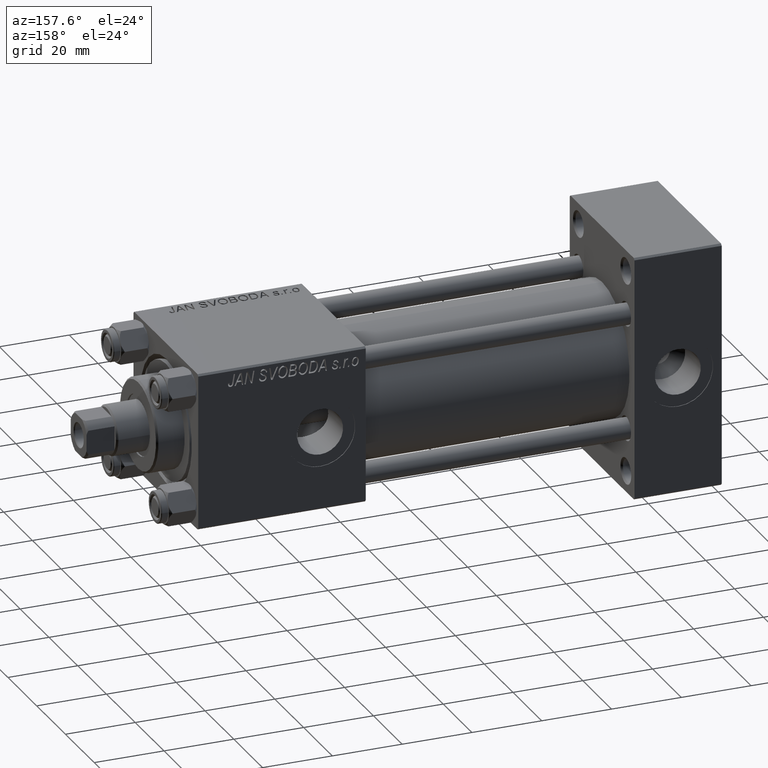
[diagram: clean part render]
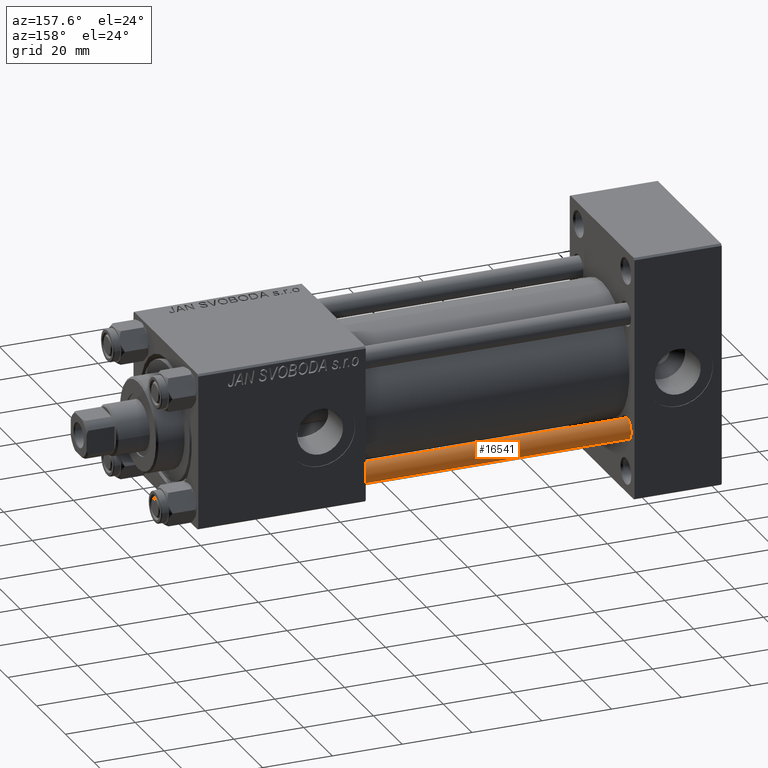
[diagram: same view with one face highlighted and labeled with its STEP entity id]
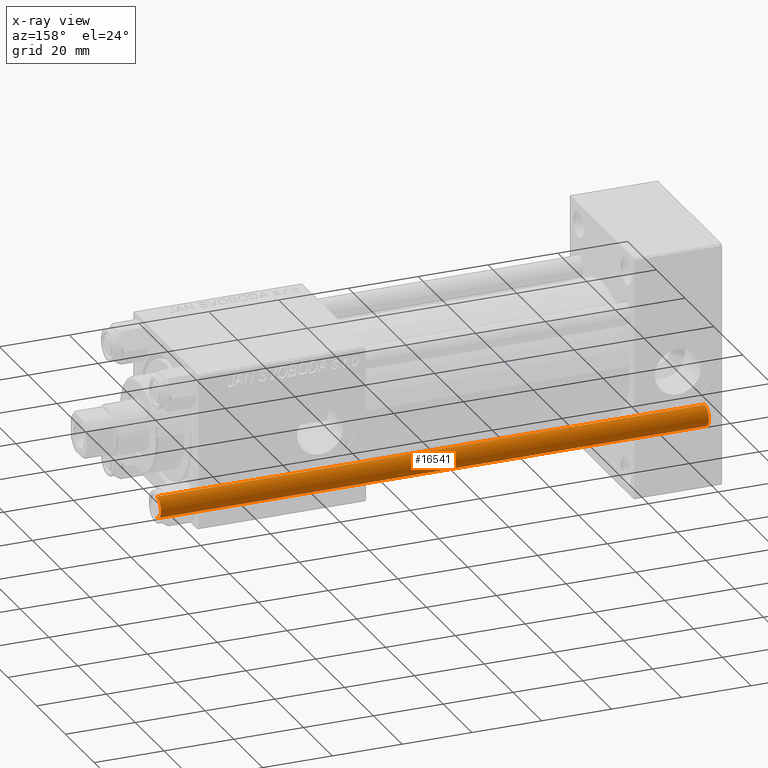
[diagram: x-ray of the same camera — body ghosted, the highlighted face saturated]
A machine part, auxiliary view. The second image highlights one B-rep face of the part: STEP entity #16541.
The next image is the same camera in x-ray: the body ghosted, the highlighted face saturated — about 0% of this face is hidden behind the body in this view.
In plain terms, the highlighted cylindrical surface (edge-blend (fillet) strip) has radius 3 mm, axis along (-1, 0, 0).
Its self-contained STEP definition (entity closure, byte-faithful):
#389 = VECTOR ( 'NONE', #27752, 1000.000000000000000 ) ;
#736 = CARTESIAN_POINT ( 'NONE',  ( 0.000000000000000000, 0.000000000000000000, 0.5000000000000281997 ) ) ;
#2215 = VERTEX_POINT ( 'NONE', #46989 ) ;
#9588 = VECTOR ( 'NONE', #9843, 1000.000000000000000 ) ;
#9843 = DIRECTION ( 'NONE',  ( -0.000000000000000000, -0.000000000000000000, -1.000000000000000000 ) ) ;
#10487 = DIRECTION ( 'NONE',  ( -1.000000000000000000, 0.000000000000000000, 0.000000000000000000 ) ) ;
#11241 = CARTESIAN_POINT ( 'NONE',  ( 0.000000000000000000, 0.000000000000000000, 158.0000000000000000 ) ) ;
#12344 = LINE ( 'NONE', #19685, #389 ) ;
#13525 = EDGE_LOOP ( 'NONE', ( #21818, #40982, #22262, #22971 ) ) ;
#14288 = AXIS2_PLACEMENT_3D ( 'NONE', #11241, #26402, #10487 ) ;
#14866 = CIRCLE ( 'NONE', #44722, 3.000000000000000444 ) ;
#16318 = CARTESIAN_POINT ( 'NONE',  ( 0.000000000000000000, 0.000000000000000000, 157.5000000000000000 ) ) ;
#16541 = ADVANCED_FACE ( 'NONE', ( #45853 ), #21868, .T. ) ;
#19685 = CARTESIAN_POINT ( 'NONE',  ( -3.000000000000000444, 0.000000000000000000, 158.0000000000000000 ) ) ;
#20844 = DIRECTION ( 'NONE',  ( 1.000000000000000000, 0.000000000000000000, 0.000000000000000000 ) ) ;
#21818 = ORIENTED_EDGE ( 'NONE', *, *, #38076, .F. ) ;
#21868 = CYLINDRICAL_SURFACE ( 'NONE', #14288, 3.000000000000000444 ) ;
#22262 = ORIENTED_EDGE ( 'NONE', *, *, #29637, .T. ) ;
#22971 = ORIENTED_EDGE ( 'NONE', *, *, #30491, .T. ) ;
#22985 = DIRECTION ( 'NONE',  ( 1.000000000000000000, 0.000000000000000000, 0.000000000000000000 ) ) ;
#23853 = AXIS2_PLACEMENT_3D ( 'NONE', #736, #27274, #22985 ) ;
#26402 = DIRECTION ( 'NONE',  ( -0.000000000000000000, -0.000000000000000000, -1.000000000000000000 ) ) ;
#27145 = EDGE_CURVE ( 'NONE', #43568, #2215, #14866, .T. ) ;
#27274 = DIRECTION ( 'NONE',  ( -0.000000000000000000, -0.000000000000000000, 1.000000000000000000 ) ) ;
#27752 = DIRECTION ( 'NONE',  ( -0.000000000000000000, -0.000000000000000000, -1.000000000000000000 ) ) ;
#29637 = EDGE_CURVE ( 'NONE', #2215, #34212, #12344, .T. ) ;
#30491 = EDGE_CURVE ( 'NONE', #34212, #35955, #49661, .T. ) ;
#31707 = DIRECTION ( 'NONE',  ( 0.000000000000000000, 0.000000000000000000, -1.000000000000000000 ) ) ;
#32327 = CARTESIAN_POINT ( 'NONE',  ( -3.000000000000000444, 0.000000000000000000, 0.5000000000000281997 ) ) ;
#34212 = VERTEX_POINT ( 'NONE', #32327 ) ;
#35955 = VERTEX_POINT ( 'NONE', #44472 ) ;
#36390 = CARTESIAN_POINT ( 'NONE',  ( 3.000000000000000444, 3.673940397442060361E-16, 158.0000000000000000 ) ) ;
#38076 = EDGE_CURVE ( 'NONE', #43568, #35955, #44222, .T. ) ;
#40982 = ORIENTED_EDGE ( 'NONE', *, *, #27145, .T. ) ;
#43568 = VERTEX_POINT ( 'NONE', #46288 ) ;
#44222 = LINE ( 'NONE', #36390, #9588 ) ;
#44472 = CARTESIAN_POINT ( 'NONE',  ( 3.000000000000000444, 3.673940397442060361E-16, 0.5000000000000281997 ) ) ;
#44722 = AXIS2_PLACEMENT_3D ( 'NONE', #16318, #31707, #20844 ) ;
#45853 = FACE_OUTER_BOUND ( 'NONE', #13525, .T. ) ;
#46288 = CARTESIAN_POINT ( 'NONE',  ( 3.000000000000000444, 3.673940397442060361E-16, 157.5000000000000000 ) ) ;
#46989 = CARTESIAN_POINT ( 'NONE',  ( -3.000000000000000444, 0.000000000000000000, 157.5000000000000000 ) ) ;
#49661 = CIRCLE ( 'NONE', #23853, 3.000000000000000444 ) ;